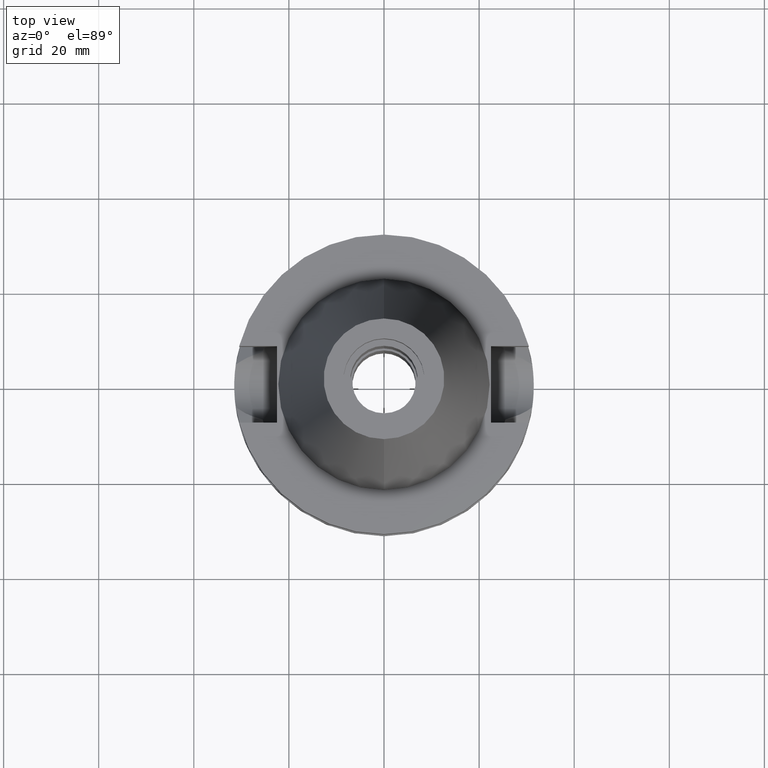
[diagram: clean part render]
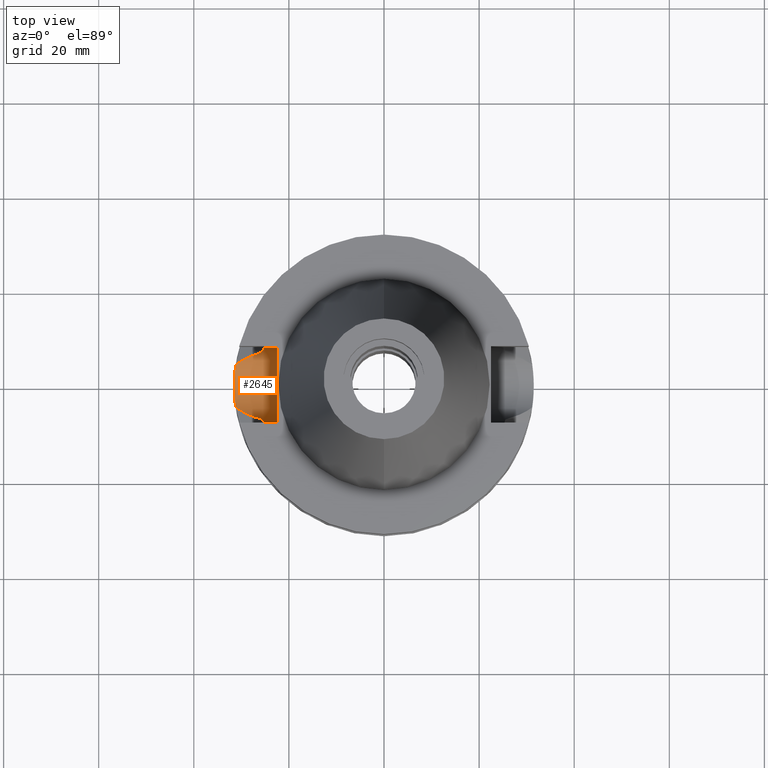
[diagram: same view with one face highlighted and labeled with its STEP entity id]
A machine part, top view. The second image highlights one B-rep face of the part: STEP entity #2645.
In plain terms, the highlighted cylindrical surface (partial cylindrical patch) has radius 8.05 mm, axis along (-1, 0, 0).
Its self-contained STEP definition (entity closure, byte-faithful):
#40 = CARTESIAN_POINT ( 'NONE',  ( -25.53175183775000079, 7.097862220092999941, -18.74774300138999905 ) ) ;
#41 = CARTESIAN_POINT ( 'NONE',  ( -31.39031131244284722, 2.628187298614472311, -22.55983422581639175 ) ) ;
#70 = CARTESIAN_POINT ( 'NONE',  ( -28.43990152820743944, 6.070864539325099507, -20.23764224923786870 ) ) ;
#100 = CARTESIAN_POINT ( 'NONE',  ( -31.17899877608999759, -4.485536235554000051, -21.63449434733000132 ) ) ;
#110 = LINE ( 'NONE', #1034, #2021 ) ;
#112 = CARTESIAN_POINT ( 'NONE',  ( -31.17899877608999759, -4.485536235554000051, -21.63449434733000132 ) ) ;
#146 = CARTESIAN_POINT ( 'NONE',  ( -22.50000000000000000, 1.807578675540999863E-14, -14.94999999999999929 ) ) ;
#158 = CARTESIAN_POINT ( 'NONE',  ( -25.31202244740001461, 7.845715351188225384, -16.75285925644253382 ) ) ;
#183 = CARTESIAN_POINT ( 'NONE',  ( -25.24772266958000344, -8.050000000000000711, -14.94999999999999929 ) ) ;
#207 = DIRECTION ( 'NONE',  ( 0.0000000000000000000, 0.0000000000000000000, -1.000000000000000000 ) ) ;
#235 = CARTESIAN_POINT ( 'NONE',  ( -25.53175183775000079, 7.097862220092999941, -18.74774300138999905 ) ) ;
#238 = B_SPLINE_CURVE_WITH_KNOTS ( 'NONE', 3,
 ( #2816, #1401, #1580, #1119, #1089, #2051, #3035, #1337, #2542, #870, #887, #2303, #413, #183 ),
 .UNSPECIFIED., .F., .F.,
 ( 4, 2, 2, 1, 1, 2, 2, 4 ),
 ( 0.0000000000000000000, 0.2500000000000133782, 0.3750000000000213163, 0.4375000000000240363, 0.4687500000000240918, 0.4843750000000253686, 0.5000000000000266454, 1.000000000000000000 ),
 .UNSPECIFIED. ) ;
#252 = VERTEX_POINT ( 'NONE', #2243 ) ;
#258 = CARTESIAN_POINT ( 'NONE',  ( -31.23221634380659495, 4.115620490481323834, -21.88272112297399374 ) ) ;
#270 = CARTESIAN_POINT ( 'NONE',  ( -31.35488044589289203, 3.022543741537075057, -22.41338040343625693 ) ) ;
#283 = CARTESIAN_POINT ( 'NONE',  ( -31.41060181519588568, 2.371771208743202131, -22.64270402106246749 ) ) ;
#295 = ORIENTED_EDGE ( 'NONE', *, *, #2694, .T. ) ;
#315 = CARTESIAN_POINT ( 'NONE',  ( -29.76055192948957995, 5.445656403349754981, -20.91204298164688069 ) ) ;
#317 = CARTESIAN_POINT ( 'NONE',  ( -28.91411312211436169, -5.850147119296114973, -20.47979804180092600 ) ) ;
#329 = CARTESIAN_POINT ( 'NONE',  ( -31.50023391467115985, 0.7573065430263614672, -23.00092412718313284 ) ) ;
#335 = CARTESIAN_POINT ( 'NONE',  ( -25.24772266958000344, 8.050000000000000711, -14.94999999999999929 ) ) ;
#342 = CARTESIAN_POINT ( 'NONE',  ( -31.46164955142648267, -1.563742733620905989, -22.84919402122475063 ) ) ;
#413 = CARTESIAN_POINT ( 'NONE',  ( -25.24772266957999634, -8.049999999999979394, -15.58990582806755398 ) ) ;
#465 = CARTESIAN_POINT ( 'NONE',  ( -25.31950540107353120, 7.821502334283406022, -16.85447843441894022 ) ) ;
#484 = VERTEX_POINT ( 'NONE', #855 ) ;
#491 = CARTESIAN_POINT ( 'NONE',  ( -31.27838846370155323, 3.744638242377782422, -22.08718706855458791 ) ) ;
#502 = CARTESIAN_POINT ( 'NONE',  ( -31.37894136408169743, 2.758863632015493561, -22.51306821924261214 ) ) ;
#545 = CARTESIAN_POINT ( 'NONE',  ( -31.36267722272346248, -3.014176567343463287, -22.44730567393840204 ) ) ;
#561 = CARTESIAN_POINT ( 'NONE',  ( -29.72021616489983842, -5.433954432060622786, -20.89127327584241556 ) ) ;
#572 = VERTEX_POINT ( 'NONE', #335 ) ;
#577 = CARTESIAN_POINT ( 'NONE',  ( -30.85662275368737184, -4.730112815926535319, -21.47037466129203764 ) ) ;
#592 = CARTESIAN_POINT ( 'NONE',  ( -31.41895388234276609, -2.258557297378926965, -22.67674196859098146 ) ) ;
#690 = VERTEX_POINT ( 'NONE', #2736 ) ;
#692 = VERTEX_POINT ( 'NONE', #2001 ) ;
#752 = CARTESIAN_POINT ( 'NONE',  ( -28.74035563290001960, 5.932764702308795712, -20.39106820100053241 ) ) ;
#765 = CARTESIAN_POINT ( 'NONE',  ( -31.17899877608999759, 4.485536235554000051, -21.63449434733000132 ) ) ;
#784 = ORIENTED_EDGE ( 'NONE', *, *, #1850, .T. ) ;
#794 = VERTEX_POINT ( 'NONE', #1808 ) ;
#801 = CARTESIAN_POINT ( 'NONE',  ( -31.41630068311783575, -2.294990303364879303, -22.66593676115486033 ) ) ;
#817 = EDGE_CURVE ( 'NONE', #484, #252, #238, .T. ) ;
#855 = CARTESIAN_POINT ( 'NONE',  ( -25.53175183775000079, -7.097862220092999941, -18.74774300138999905 ) ) ;
#863 = DIRECTION ( 'NONE',  ( -1.000000000000000000, 0.0000000000000000000, 0.0000000000000000000 ) ) ;
#870 = CARTESIAN_POINT ( 'NONE',  ( -25.32546100062935679, -7.802196480338490225, -16.93206928540818268 ) ) ;
#887 = CARTESIAN_POINT ( 'NONE',  ( -25.32415077929965719, -7.806445795312512814, -16.91528421260400705 ) ) ;
#896 = CARTESIAN_POINT ( 'NONE',  ( -25.24772266958000344, 8.050000000000000711, -14.94999999999999929 ) ) ;
#944 = CARTESIAN_POINT ( 'NONE',  ( -31.17899877608999759, 4.485536235554000051, -21.63449434733000132 ) ) ;
#959 = CARTESIAN_POINT ( 'NONE',  ( -31.40242035841425761, 2.478036592977461261, -22.60933024856559115 ) ) ;
#1019 = CARTESIAN_POINT ( 'NONE',  ( -31.47072699418135855, -1.368170334974633695, -22.88533600626924169 ) ) ;
#1034 = CARTESIAN_POINT ( 'NONE',  ( -22.50000000000000000, -8.050000000000000711, -14.94999999999999929 ) ) ;
#1037 = CARTESIAN_POINT ( 'NONE',  ( -31.41451779209810624, -2.319272271054960033, -22.65867282529199045 ) ) ;
#1062 = EDGE_CURVE ( 'NONE', #692, #484, #2040, .T. ) ;
#1082 = CYLINDRICAL_SURFACE ( 'NONE', #1222, 8.050000000000000711 ) ;
#1089 = CARTESIAN_POINT ( 'NONE',  ( -25.37568864340297736, -7.637841086871763885, -17.49779646605935213 ) ) ;
#1090 = B_SPLINE_CURVE_WITH_KNOTS ( 'NONE', 3,
 ( #1232, #2410, #2162, #1440, #1247, #1187, #70, #1427, #752, #1694, #1708, #315, #1958, #765 ),
 .UNSPECIFIED., .F., .F.,
 ( 4, 2, 2, 1, 1, 2, 2, 4 ),
 ( 0.0000000000000000000, 0.2499999999999958922, 0.3749999999999929501, 0.4374999999999925060, 0.4687499999999922284, 0.4843749999999927280, 0.4999999999999932276, 1.000000000000000000 ),
 .UNSPECIFIED. ) ;
#1095 = FACE_OUTER_BOUND ( 'NONE', #1176, .T. ) ;
#1119 = CARTESIAN_POINT ( 'NONE',  ( -25.39160756134142360, -7.584934398583156323, -17.65162641216541317 ) ) ;
#1121 = EDGE_CURVE ( 'NONE', #794, #690, #2435, .T. ) ;
#1158 = CARTESIAN_POINT ( 'NONE',  ( -25.32117791941933405, 7.816083715568992396, -16.87657725263354180 ) ) ;
#1176 = EDGE_LOOP ( 'NONE', ( #1718, #2924, #2088, #1270, #295, #2803, #784, #2251 ) ) ;
#1187 = CARTESIAN_POINT ( 'NONE',  ( -28.25254644250948743, 6.152508184297839300, -20.14194560511423049 ) ) ;
#1201 = VERTEX_POINT ( 'NONE', #944 ) ;
#1213 = CARTESIAN_POINT ( 'NONE',  ( -31.41200430603227645, 2.353176799726029778, -22.64842219027421422 ) ) ;
#1222 = AXIS2_PLACEMENT_3D ( 'NONE', #2061, #863, #207 ) ;
#1232 = CARTESIAN_POINT ( 'NONE',  ( -25.53175183775000079, 7.097862220092999941, -18.74774300138999905 ) ) ;
#1247 = CARTESIAN_POINT ( 'NONE',  ( -27.86962453443834065, 6.314131635379212071, -19.94628523889200977 ) ) ;
#1249 = DIRECTION ( 'NONE',  ( 0.0000000000000000000, 0.0000000000000000000, -1.000000000000000000 ) ) ;
#1265 = CARTESIAN_POINT ( 'NONE',  ( -28.88699180980454884, -5.863209771554227956, -20.46594846921184896 ) ) ;
#1270 = ORIENTED_EDGE ( 'NONE', *, *, #2963, .F. ) ;
#1337 = CARTESIAN_POINT ( 'NONE',  ( -25.33288387036077083, -7.778102131032761157, -17.02514599129927575 ) ) ;
#1392 = CARTESIAN_POINT ( 'NONE',  ( -25.24772266958000344, 8.050000000000000711, -14.94999999999999929 ) ) ;
#1401 = CARTESIAN_POINT ( 'NONE',  ( -25.48480250143130021, -7.266743887086228426, -18.43210847757043425 ) ) ;
#1407 = CARTESIAN_POINT ( 'NONE',  ( -25.36813810015027926, 7.663837995223238941, -17.48799049447513454 ) ) ;
#1427 = CARTESIAN_POINT ( 'NONE',  ( -28.65129719193085833, 5.974366551846120643, -20.34559157953819764 ) ) ;
#1432 = VECTOR ( 'NONE', #1434, 1000.000000000000000 ) ;
#1434 = DIRECTION ( 'NONE',  ( 1.000000000000000000, 1.551559937893000172E-14, -3.878899844733000253E-14 ) ) ;
#1440 = CARTESIAN_POINT ( 'NONE',  ( -27.60339428015725005, 6.419664794996690738, -19.81015176190722116 ) ) ;
#1451 = CARTESIAN_POINT ( 'NONE',  ( -31.40736225801990500, 2.414206324135752979, -22.62949227793067308 ) ) ;
#1507 = CARTESIAN_POINT ( 'NONE',  ( -31.43649054899053041, -2.003082981844441335, -22.74794518897694928 ) ) ;
#1510 = CARTESIAN_POINT ( 'NONE',  ( -29.05352267236292008, -5.782229305768103345, -20.55098459679257061 ) ) ;
#1546 = CARTESIAN_POINT ( 'NONE',  ( -31.49254817246029958, -0.7824343147792103270, -22.97160126998634055 ) ) ;
#1549 = CARTESIAN_POINT ( 'NONE',  ( -29.40588621027801253, -5.602685636828955040, -20.73086809068136205 ) ) ;
#1580 = CARTESIAN_POINT ( 'NONE',  ( -25.44389776528931790, -7.408340107180626966, -18.11686868423986496 ) ) ;
#1631 = CARTESIAN_POINT ( 'NONE',  ( -25.29452159809190093, 7.902075829211898217, -16.48836005901232937 ) ) ;
#1694 = CARTESIAN_POINT ( 'NONE',  ( -28.79938577118464949, 5.904977951684555748, -20.42121152680278939 ) ) ;
#1708 = CARTESIAN_POINT ( 'NONE',  ( -28.82969488675324854, 5.890597165919324141, -20.43668882989978286 ) ) ;
#1718 = ORIENTED_EDGE ( 'NONE', *, *, #817, .T. ) ;
#1759 = CARTESIAN_POINT ( 'NONE',  ( -29.24569840222459050, -5.686251097783737052, -20.64910357180827205 ) ) ;
#1786 = CARTESIAN_POINT ( 'NONE',  ( -31.44532781230133267, -1.856703196126451072, -22.78359225527918497 ) ) ;
#1808 = CARTESIAN_POINT ( 'NONE',  ( -22.50000000000000000, -8.050000000000000711, -14.94999999999999929 ) ) ;
#1809 = EDGE_CURVE ( 'NONE', #2252, #1201, #1090, .T. ) ;
#1850 = EDGE_CURVE ( 'NONE', #1201, #692, #1948, .T. ) ;
#1864 = CARTESIAN_POINT ( 'NONE',  ( -25.27268209811968092, 7.971799596722143555, -16.08124396174321902 ) ) ;
#1948 = B_SPLINE_CURVE_WITH_KNOTS ( 'NONE', 3,
 ( #2624, #258, #491, #2393, #270, #502, #41, #959, #1451, #283, #1213, #2176, #329, #2238, #1546, #1019, #342, #1786, #1507, #2474, #592, #801, #1037, #2684, #545, #2027, #112 ),
 .UNSPECIFIED., .F., .F.,
 ( 4, 2, 2, 1, 1, 2, 2, 2, 2, 2, 1, 1, 1, 2, 2, 4 ),
 ( 0.0000000000000000000, 0.1250000000000033862, 0.1875000000000048017, 0.2187500000000052458, 0.2343750000000055789, 0.2421875000000058842, 0.2500000000000062172, 0.5000000000000111022, 0.6250000000000135447, 0.6875000000000148770, 0.7187500000000155431, 0.7343750000000157652, 0.7421875000000159872, 0.7460937500000157652, 0.7500000000000155431, 1.000000000000000000 ),
 .UNSPECIFIED. ) ;
#1958 = CARTESIAN_POINT ( 'NONE',  ( -30.53425062954388736, 4.974686438809003519, -21.30625695983297874 ) ) ;
#1960 = CARTESIAN_POINT ( 'NONE',  ( -28.97002808375091476, -5.823025767158112487, -20.50835035019622410 ) ) ;
#1979 = CARTESIAN_POINT ( 'NONE',  ( -30.50200320336482918, -4.970094920871139799, -21.28985451182910538 ) ) ;
#2001 = CARTESIAN_POINT ( 'NONE',  ( -31.17899877608999759, -4.485536235554000051, -21.63449434733000132 ) ) ;
#2021 = VECTOR ( 'NONE', #2742, 1000.000000000000000 ) ;
#2027 = CARTESIAN_POINT ( 'NONE',  ( -31.28475554409486392, -3.750420082838396230, -22.12778373752697192 ) ) ;
#2040 = B_SPLINE_CURVE_WITH_KNOTS ( 'NONE', 3,
 ( #100, #577, #1979, #2701, #561, #1549, #1759, #1510, #1960, #317, #1265, #2917, #2224, #2716 ),
 .UNSPECIFIED., .F., .F.,
 ( 4, 2, 2, 1, 1, 2, 2, 4 ),
 ( 0.0000000000000000000, 0.2500000000000084932, 0.3750000000000121569, 0.4375000000000137113, 0.4687500000000143774, 0.4843750000000146549, 0.5000000000000149880, 1.000000000000000000 ),
 .UNSPECIFIED. ) ;
#2051 = CARTESIAN_POINT ( 'NONE',  ( -25.35407699156156625, -7.708962562370444083, -17.26964265290226308 ) ) ;
#2061 = CARTESIAN_POINT ( 'NONE',  ( -22.50000000000000000, 1.807578675540999863E-14, -14.94999999999999929 ) ) ;
#2088 = ORIENTED_EDGE ( 'NONE', *, *, #1121, .T. ) ;
#2112 = CARTESIAN_POINT ( 'NONE',  ( -25.24772266958000699, 8.050000000000018474, -15.26995863568740397 ) ) ;
#2124 = CARTESIAN_POINT ( 'NONE',  ( -25.31648297027380679, 7.831286608423163820, -16.81383661545202557 ) ) ;
#2162 = CARTESIAN_POINT ( 'NONE',  ( -26.77185657061298230, 6.727609262531489165, -19.38446259723307463 ) ) ;
#2176 = CARTESIAN_POINT ( 'NONE',  ( -31.47150441655145769, 1.550750680680204496, -22.89093377966316112 ) ) ;
#2224 = CARTESIAN_POINT ( 'NONE',  ( -26.81564271558129775, -6.744942618144249558, -19.40733863713212770 ) ) ;
#2238 = CARTESIAN_POINT ( 'NONE',  ( -31.49988075799867815, -0.3932938145140633113, -22.99952906081513504 ) ) ;
#2241 = DIRECTION ( 'NONE',  ( 1.000000000000000000, 0.0000000000000000000, 0.0000000000000000000 ) ) ;
#2243 = CARTESIAN_POINT ( 'NONE',  ( -25.24772266958000344, -8.050000000000000711, -14.94999999999999929 ) ) ;
#2251 = ORIENTED_EDGE ( 'NONE', *, *, #1062, .T. ) ;
#2252 = VERTEX_POINT ( 'NONE', #40 ) ;
#2303 = CARTESIAN_POINT ( 'NONE',  ( -25.27267878703948156, -7.973310748591815766, -16.24511349492755485 ) ) ;
#2358 = CARTESIAN_POINT ( 'NONE',  ( -25.43785506100059379, 7.435618734365219140, -18.11648669958635693 ) ) ;
#2393 = CARTESIAN_POINT ( 'NONE',  ( -31.33707847181160133, 3.201445231427315186, -22.33871180481595076 ) ) ;
#2410 = CARTESIAN_POINT ( 'NONE',  ( -26.17370216864880916, 6.921401074389007313, -19.07754333251647694 ) ) ;
#2435 = CIRCLE ( 'NONE', #2679, 8.050000000000000711 ) ;
#2451 = EDGE_CURVE ( 'NONE', #794, #252, #110, .T. ) ;
#2474 = CARTESIAN_POINT ( 'NONE',  ( -31.42499671940192485, -2.173479871756074377, -22.70131995673218128 ) ) ;
#2534 = B_SPLINE_CURVE_WITH_KNOTS ( 'NONE', 3,
 ( #1392, #2112, #3058, #1864, #2821, #1631, #2593, #158, #2124, #465, #1158, #1407, #2358, #235 ),
 .UNSPECIFIED., .F., .F.,
 ( 4, 2, 2, 1, 1, 2, 2, 4 ),
 ( 0.0000000000000000000, 0.2500000000000162648, 0.3750000000000237033, 0.4375000000000274225, 0.4687500000000292544, 0.4843750000000290878, 0.5000000000000288658, 1.000000000000000000 ),
 .UNSPECIFIED. ) ;
#2542 = CARTESIAN_POINT ( 'NONE',  ( -25.32840181445860139, -7.792653841590092334, -16.96926092299040079 ) ) ;
#2565 = LINE ( 'NONE', #896, #1432 ) ;
#2593 = CARTESIAN_POINT ( 'NONE',  ( -25.30212642397509626, 7.877652634765773598, -16.61049091562633961 ) ) ;
#2624 = CARTESIAN_POINT ( 'NONE',  ( -31.17899877608999759, 4.485536235554000051, -21.63449434733000132 ) ) ;
#2645 = ADVANCED_FACE ( 'NONE', ( #1095 ), #1082, .F. ) ;
#2679 = AXIS2_PLACEMENT_3D ( 'NONE', #146, #2241, #1249 ) ;
#2684 = CARTESIAN_POINT ( 'NONE',  ( -31.41354641493283140, -2.332384000896544851, -22.65471317283579467 ) ) ;
#2694 = EDGE_CURVE ( 'NONE', #572, #2252, #2534, .T. ) ;
#2701 = CARTESIAN_POINT ( 'NONE',  ( -29.92170858600108474, -5.319334033404497397, -20.99404335933089172 ) ) ;
#2716 = CARTESIAN_POINT ( 'NONE',  ( -25.53175183775000079, -7.097862220092999941, -18.74774300138999905 ) ) ;
#2736 = CARTESIAN_POINT ( 'NONE',  ( -22.50000000000000000, 8.050000000000000711, -14.94999999999999929 ) ) ;
#2742 = DIRECTION ( 'NONE',  ( -1.000000000000000000, 1.616208268639000174E-14, -1.357614945656000126E-14 ) ) ;
#2803 = ORIENTED_EDGE ( 'NONE', *, *, #1809, .T. ) ;
#2816 = CARTESIAN_POINT ( 'NONE',  ( -25.53175183775000079, -7.097862220092999941, -18.74774300138999905 ) ) ;
#2821 = CARTESIAN_POINT ( 'NONE',  ( -25.28048191953834234, 7.947027004681899598, -16.24409354915845327 ) ) ;
#2917 = CARTESIAN_POINT ( 'NONE',  ( -27.92433220520961257, -6.323347640139870940, -19.97435140467612413 ) ) ;
#2924 = ORIENTED_EDGE ( 'NONE', *, *, #2451, .F. ) ;
#2963 = EDGE_CURVE ( 'NONE', #572, #690, #2565, .T. ) ;
#3035 = CARTESIAN_POINT ( 'NONE',  ( -25.34383784690743369, -7.742464100972826557, -17.15621186860311198 ) ) ;
#3058 = CARTESIAN_POINT ( 'NONE',  ( -25.25396252671492547, 8.030902051885153270, -15.59367622151629718 ) ) ;